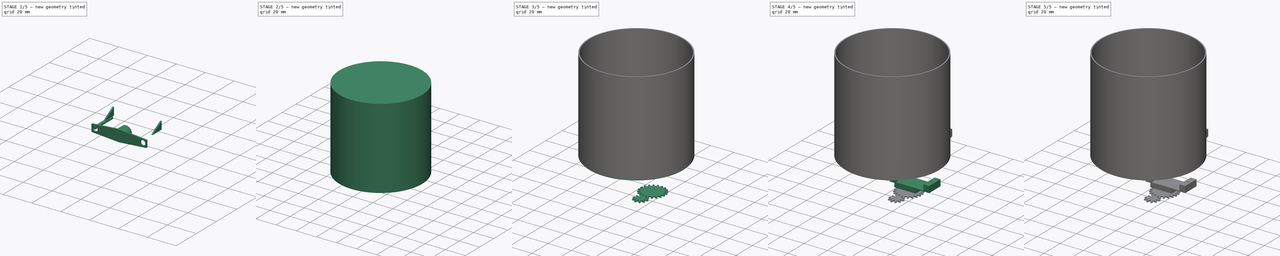
[diagram: build sequence overview — one tinted view per stage of 5, left to right]
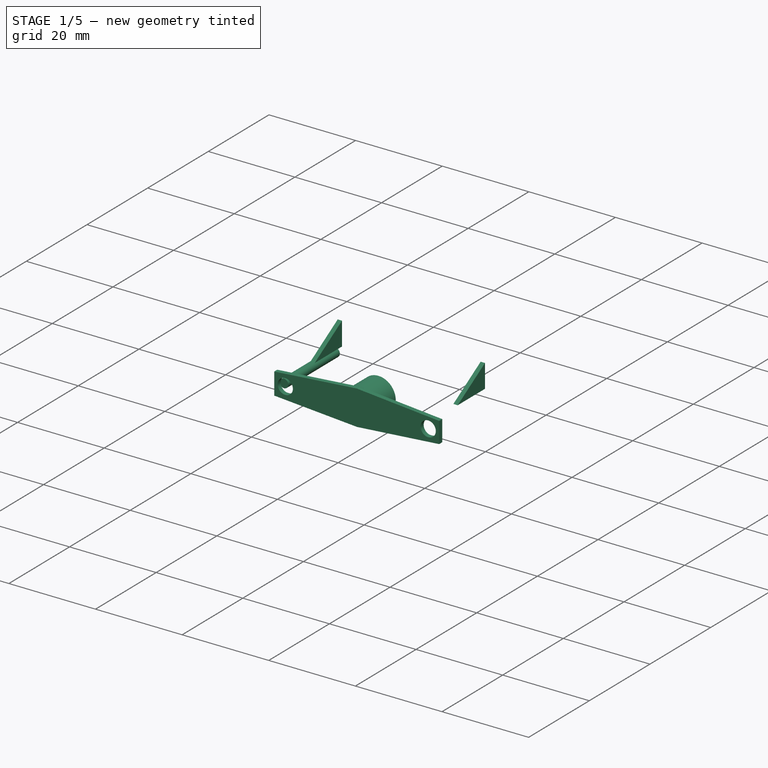
[diagram: stage 1 of 5 — iso view after this stage's code; geometry added in this stage tinted green]
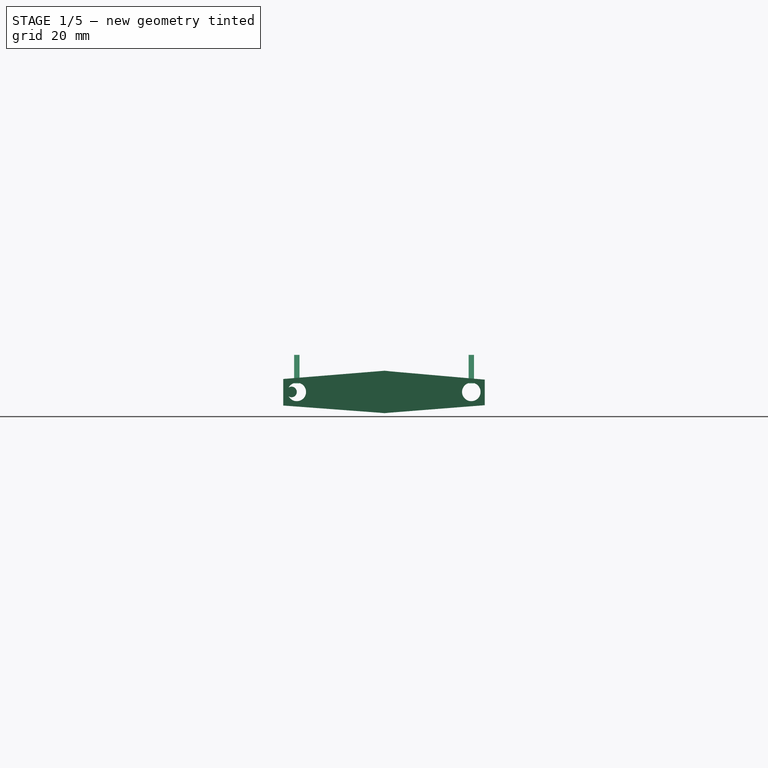
[diagram: stage 1 of 5 — front view after this stage's code; geometry added in this stage tinted green]
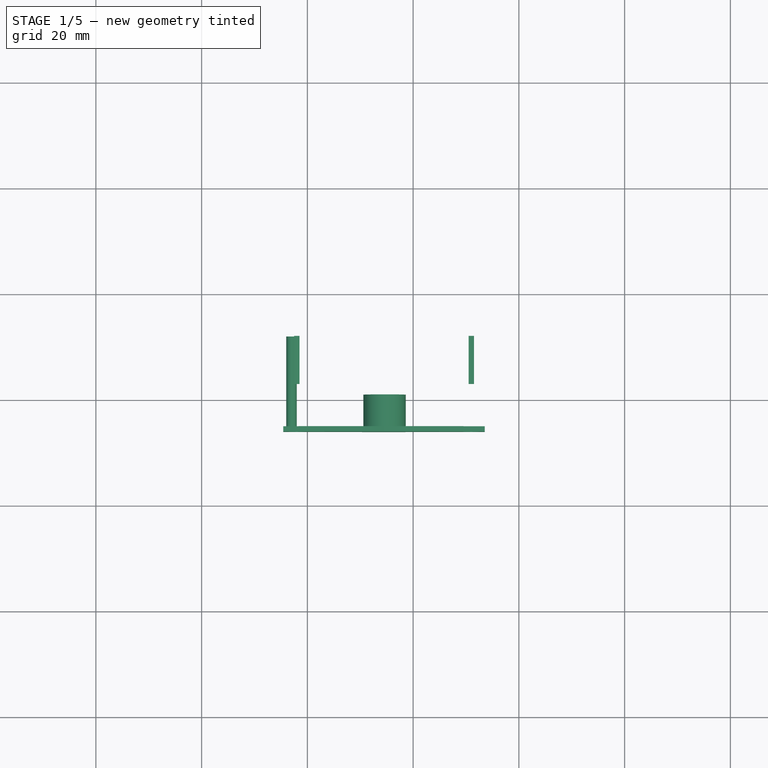
[diagram: stage 1 of 5 — top view after this stage's code; geometry added in this stage tinted green]
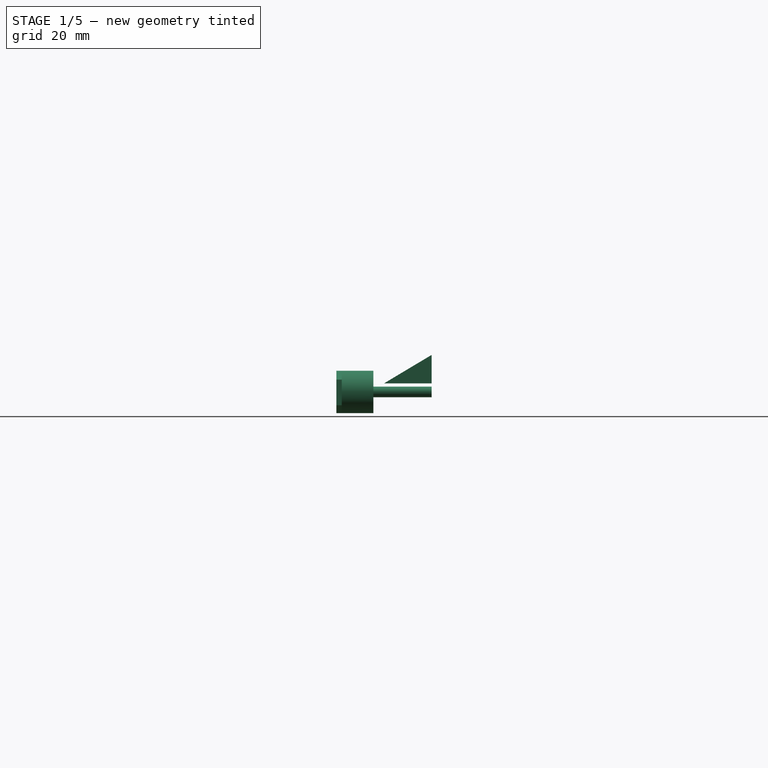
[diagram: stage 1 of 5 — right view after this stage's code; geometry added in this stage tinted green]
FCSTD DOCUMENT  (FreeCAD 0.14R3702 (Git))
Label: base-top-00
License: CC-BY 3.0
LicenseURL: http://creativecommons.org/licenses/by/3.0/
objects: Part::Cylinder×24, PartDesign::Pad×9, Sketcher::SketchObject×8, Part::Cut×8, Part::MultiFuse×4, Part::FeaturePython×3, Part::Feature×2, App::DocumentObjectGroup×2, Part::Fillet×1
note: 68 computed .brp shape members not serialized (recipe doc carries the construction recipe); baked Part::Feature solids carry a one-line shape summary decoded from their .brp

FEATURE [Part::Cylinder] Cylinder009
  Angle = 360
  Height = 6
  Placement = pos=(-5.4,-19,0) rot=(1,0,0;1.5708rad)
  Radius = 4
FEATURE [Part::Cylinder] Cylinder021
  Angle = 360
  Height = 17
  Placement = pos=(-23,-8,0) rot=(1,0,0;1.5708rad)
  Radius = 1
FEATURE [Sketcher::SketchObject] Sketch008
  Placement = pos=(0,-25,0) rot=(-1,0,0;4.71239rad)
  sketch-geometry (6):
    g0: LineSegment StartX=-24.5527 StartY=2.44915 StartZ=0 EndX=-5.51427 EndY=4 EndZ=0
    g1: LineSegment StartX=-5.51427 StartY=4 StartZ=0 EndX=13.5315 EndY=2.32669 EndZ=0
    g2: LineSegment StartX=13.5315 StartY=2.32669 StartZ=0 EndX=13.5315 EndY=-2.51037 EndZ=0
    g3: LineSegment StartX=13.5315 StartY=-2.51037 StartZ=0 EndX=-5.41401 EndY=-4 EndZ=0
    g4: LineSegment StartX=-5.41401 StartY=-4 StartZ=0 EndX=-24.5527 EndY=-2.5716 EndZ=0
    g5: LineSegment StartX=-24.5527 StartY=-2.5716 StartZ=0 EndX=-24.5527 EndY=2.44915 EndZ=0
  constraints (8):
    c: Coincident(g0,g1)
    c: Coincident(g1,g2)
    c: Coincident(g2,g3)
    c: Coincident(g3,g4)
    c: Coincident(g4,g5)
    c: Coincident(g5,g0)
    c: Vertical(g5)
    c: Vertical(g2)
FEATURE [PartDesign::Pad] Pad009
  Length = 1
  Length2 = 100
  Placement = pos=(0,-25,0) rot=(-1,0,0;4.71239rad)
  Sketch = -> Sketch008
  Type = 0
FEATURE [Part::Cylinder] Cylinder022
  Angle = 360
  Height = 17
  Placement = pos=(11,-12,0) rot=(1,0,0;1.5708rad)
  Radius = 1.75
FEATURE [Part::Cylinder] Cylinder023
  Angle = 360
  Height = 17
  Placement = pos=(-22,-12,0) rot=(1,0,0;1.5708rad)
  Radius = 1.75
FEATURE [Part::MultiFuse] Fusion002
  Shapes = -> [Cylinder022,Cylinder023]
FEATURE [Part::Cut] Cut007
  Base = -> Pad009
  Tool = -> Fusion002
FEATURE [Part::MultiFuse] Fusion003
  Shapes = -> [Cylinder009,Cut007]
FEATURE [Sketcher::SketchObject] Sketch009
  Placement = pos=(11,0,0) rot=(0.57735,0.57735,0.57735;2.0944rad)
  sketch-geometry (3):
    g0: LineSegment StartX=-8 StartY=7 StartZ=0 EndX=-17 EndY=1.61413 EndZ=0
    g1: LineSegment StartX=-17 StartY=1.61413 StartZ=0 EndX=-8 EndY=1.61413 EndZ=0
    g2: LineSegment StartX=-8 StartY=1.61413 StartZ=0 EndX=-8 EndY=7 EndZ=0
  constraints (5):
    c: Coincident(g0,g1)
    c: Horizontal(g1)
    c: Coincident(g1,g2)
    c: Coincident(g2,g0)
    c: Vertical(g2)
FEATURE [PartDesign::Pad] Pad010
  Length = 1
  Length2 = 100
  Midplane = true
  Placement = pos=(11,0,0) rot=(0.57735,0.57735,0.57735;2.0944rad)
  Sketch = -> Sketch009
  Type = 0
FEATURE [Sketcher::SketchObject] Sketch010
  Placement = pos=(-22,0,0) rot=(0.57735,0.57735,0.57735;2.0944rad)
  sketch-geometry (3):
    g0: LineSegment StartX=-8 StartY=7 StartZ=0 EndX=-17 EndY=1.61413 EndZ=0
    g1: LineSegment StartX=-17 StartY=1.61413 StartZ=0 EndX=-8 EndY=1.61413 EndZ=0
    g2: LineSegment StartX=-8 StartY=1.61413 StartZ=0 EndX=-8 EndY=7 EndZ=0
  constraints (5):
    c: Coincident(g0,g1)
    c: Horizontal(g1)
    c: Coincident(g1,g2)
    c: Coincident(g2,g0)
    c: Vertical(g2)
FEATURE [PartDesign::Pad] Pad011
  Length = 1
  Length2 = 100
  Midplane = true
  Placement = pos=(-22,0,0) rot=(0.57735,0.57735,0.57735;2.0944rad)
  Sketch = -> Sketch010
  Type = 0
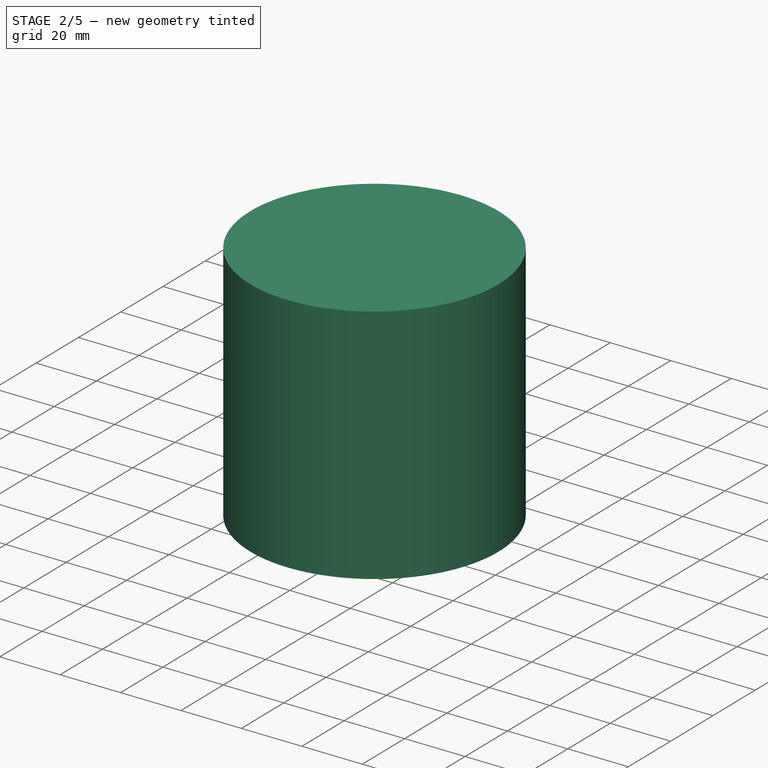
[diagram: stage 2 of 5 — iso view after this stage's code; geometry added in this stage tinted green]
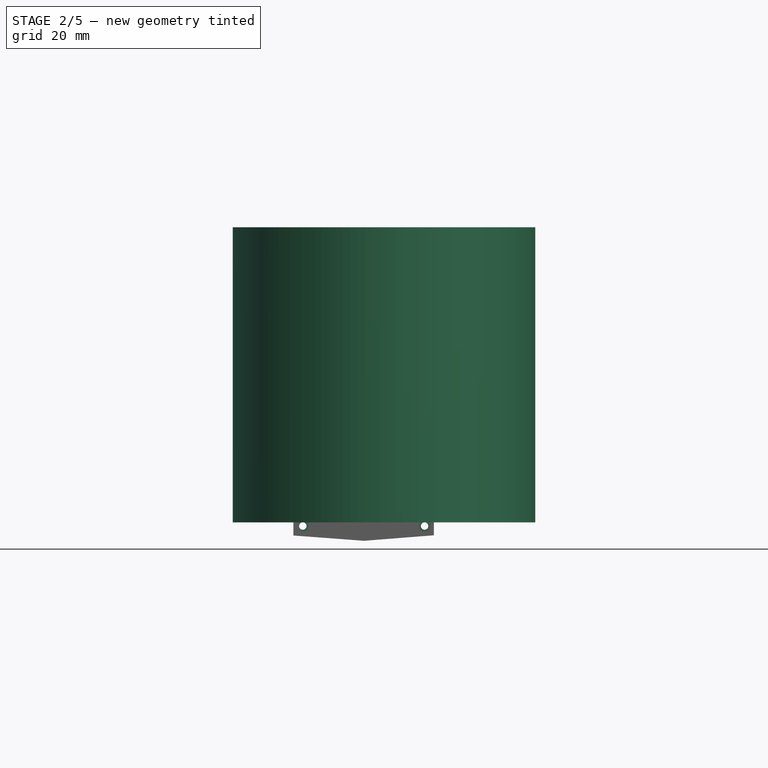
[diagram: stage 2 of 5 — front view after this stage's code; geometry added in this stage tinted green]
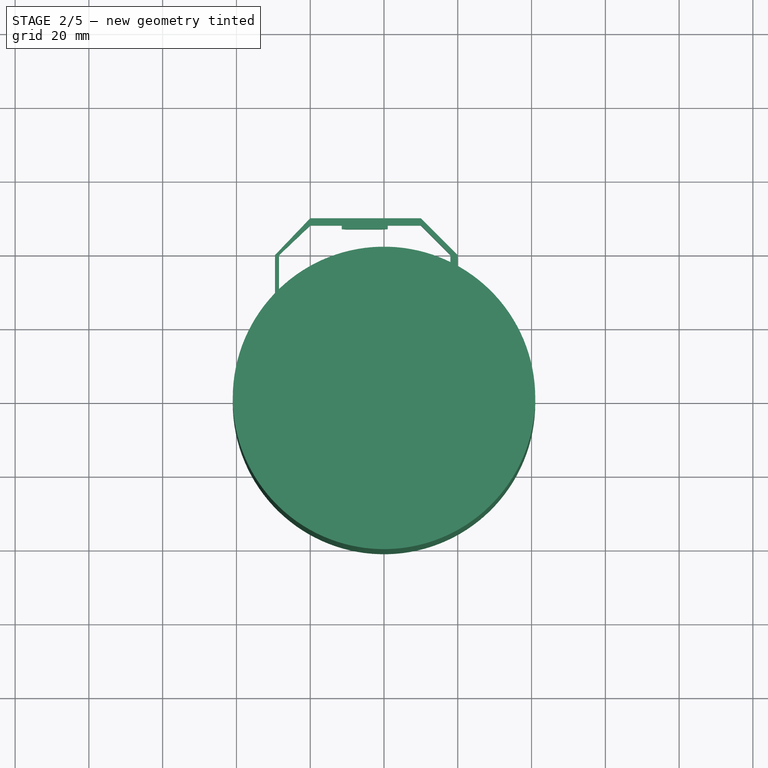
[diagram: stage 2 of 5 — top view after this stage's code; geometry added in this stage tinted green]
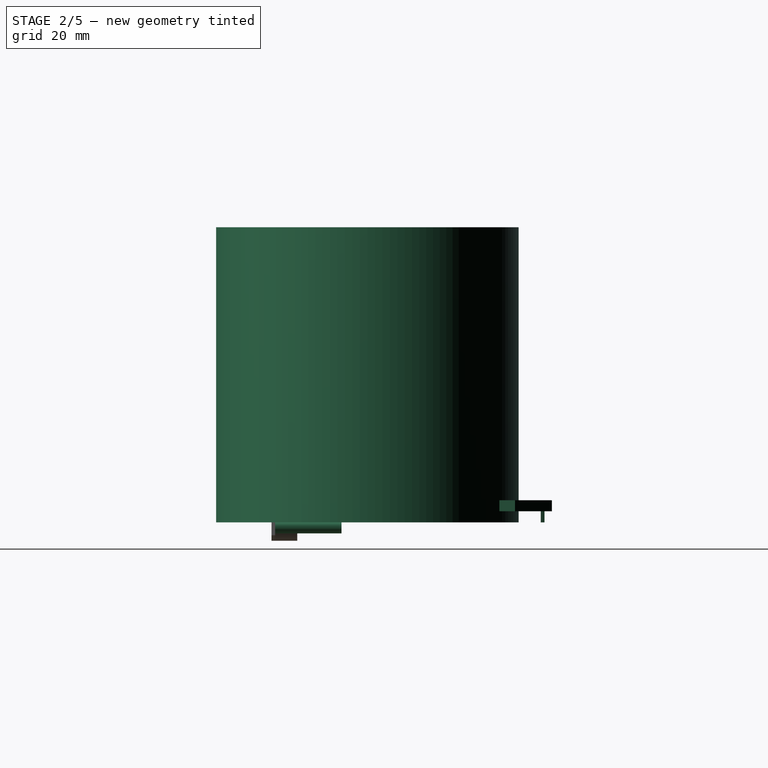
[diagram: stage 2 of 5 — right view after this stage's code; geometry added in this stage tinted green]
FEATURE [Part::Cylinder] Cylinder016
  Angle = 360
  Height = 80
  Placement = pos=(0,0,1) rot=(0,0,1;0rad)
  Radius = 40
FEATURE [Part::Cylinder] Cylinder017
  Angle = 360
  Height = 80
  Placement = pos=(0,0,1) rot=(0,0,1;0rad)
  Radius = 41
FEATURE [App::DocumentObjectGroup] Group001  label="bottom"
  Group = -> [Cylinder010,Cylinder011,Gear001,Gear002,Cylinder012,Cylinder013,Cylinder014,Fillet,Cut004]
FEATURE [Sketcher::SketchObject] Sketch006
  Placement = pos=(0,48,0) rot=(-1,0,0;4.71239rad)
  sketch-geometry (3):
    g0: LineSegment StartX=1 StartY=7 StartZ=0 EndX=-12 EndY=7 EndZ=0
    g1: LineSegment StartX=-12 StartY=7 StartZ=0 EndX=-10 EndY=1 EndZ=0
    g2: LineSegment StartX=-10 StartY=1 StartZ=0 EndX=-1 EndY=1 EndZ=0
  constraints (10):
    c: Horizontal(g0)
    c: Coincident(g0,g1)
    c: Horizontal(g2)
    c: DistanceX(g-1,g0) = 1
    c: DistanceY(g-1,g0) = 7
    c: DistanceY(g-1,g2) = 1
    c: DistanceX(g1,g2) = 9
    c: DistanceX(g0,g0) = 13
    c: DistanceX(g2,g0) = 2
    c: Coincident(g1,g2)
FEATURE [PartDesign::Pad] Pad007
  Length = 1
  Length2 = 100
  Placement = pos=(0,48,0) rot=(-1,0,0;4.71239rad)
  Sketch = -> Sketch006
  Type = 0
FEATURE [App::DocumentObjectGroup] Group  label="top"
  Group = -> [Part__Feature,Cut,Pad001,Cylinder004,Part__Feature001,Cut001,Cut002,Cut003,Pad004,Pad007]
FEATURE [Sketcher::SketchObject] Sketch007
  Placement = pos=(0,0,4) rot=(0,0,1;0rad)
  sketch-geometry (16):
    g0: LineSegment StartX=-20.1116 StartY=-8 StartZ=0 EndX=-29.5609 EndY=-8 EndZ=0
    g1: LineSegment StartX=-29.5609 StartY=-8 StartZ=0 EndX=-29.5609 EndY=40 EndZ=0
    g2: LineSegment StartX=-29.5609 StartY=40 StartZ=0 EndX=-20 EndY=50 EndZ=0
    g3: LineSegment StartX=-20 StartY=50 StartZ=0 EndX=10 EndY=50 EndZ=0
    g4: LineSegment StartX=10 StartY=50 StartZ=0 EndX=20 EndY=40 EndZ=0
    g5: LineSegment StartX=20 StartY=40 StartZ=0 EndX=20 EndY=-8 EndZ=0
    g6: LineSegment StartX=20 StartY=-8 StartZ=0 EndX=9.88843 EndY=-8 EndZ=0
    g7: LineSegment StartX=9.88843 StartY=-8 StartZ=0 EndX=-20.1116 EndY=-8 EndZ=0
    g8: LineSegment StartX=-28.4453 StartY=-6 StartZ=0 EndX=-28.4453 EndY=40 EndZ=0
    g9: LineSegment StartX=-28.4453 StartY=40 StartZ=0 EndX=-20 EndY=48 EndZ=0
    g10: LineSegment StartX=-20 StartY=48 StartZ=0 EndX=10 EndY=48 EndZ=0
    g11: LineSegment StartX=10 StartY=48 StartZ=0 EndX=18 EndY=40 EndZ=0
    g12: LineSegment StartX=18 StartY=40 StartZ=0 EndX=18 EndY=-6 EndZ=0
    g13: LineSegment StartX=18 StartY=-6 StartZ=0 EndX=10 EndY=-6 EndZ=0
    g14: LineSegment StartX=10 StartY=-6 StartZ=0 EndX=-22 EndY=-6 EndZ=0
    g15: LineSegment StartX=-22 StartY=-6 StartZ=0 EndX=-28.4453 EndY=-6 EndZ=0
  constraints (24):
    c: Coincident(g0,g1)
    c: Vertical(g1)
    c: Coincident(g1,g2)
    c: Coincident(g2,g3)
    c: Horizontal(g3)
    c: Coincident(g3,g4)
    c: Coincident(g4,g5)
    c: Vertical(g5)
    c: Coincident(g5,g6)
    c: Coincident(g6,g7)
    c: Coincident(g7,g0)
    c: Horizontal(g7)
    c: Vertical(g8)
    c: Coincident(g8,g9)
    c: Coincident(g9,g10)
    c: Horizontal(g10)
    c: Coincident(g10,g11)
    c: Coincident(g11,g12)
    c: Vertical(g12)
    c: Coincident(g12,g13)
    c: Coincident(g13,g14)
    c: Horizontal(g14)
    c: Coincident(g14,g15)
    c: Coincident(g15,g8)
FEATURE [PartDesign::Pad] Pad008
  Length = 3
  Length2 = 100
  Placement = pos=(0,0,4) rot=(0,0,1;0rad)
  Sketch = -> Sketch007
  Type = 0
FEATURE [Part::Cylinder] Cylinder018
  Angle = 360
  Height = 18
  Placement = pos=(12,-7,0) rot=(1,0,0;1.5708rad)
  Radius = 2
FEATURE [Part::Cylinder] Cylinder019
  Angle = 360
  Height = 17
  Placement = pos=(-23,-8,0) rot=(1,0,0;1.5708rad)
  Radius = 2
FEATURE [Part::Cylinder] Cylinder020
  Angle = 360
  Height = 18
  Placement = pos=(12,-7,0) rot=(1,0,0;1.5708rad)
  Radius = 1
FEATURE [Part::Cut] Cut005
  Base = -> Cylinder018
  Placement = pos=(-1,0,0) rot=(0,0,1;0rad)
  Tool = -> Cylinder020
FEATURE [Part::Cut] Cut006
  Base = -> Cylinder019
  Placement = pos=(1,0,0) rot=(0,0,1;0rad)
  Tool = -> Cylinder021
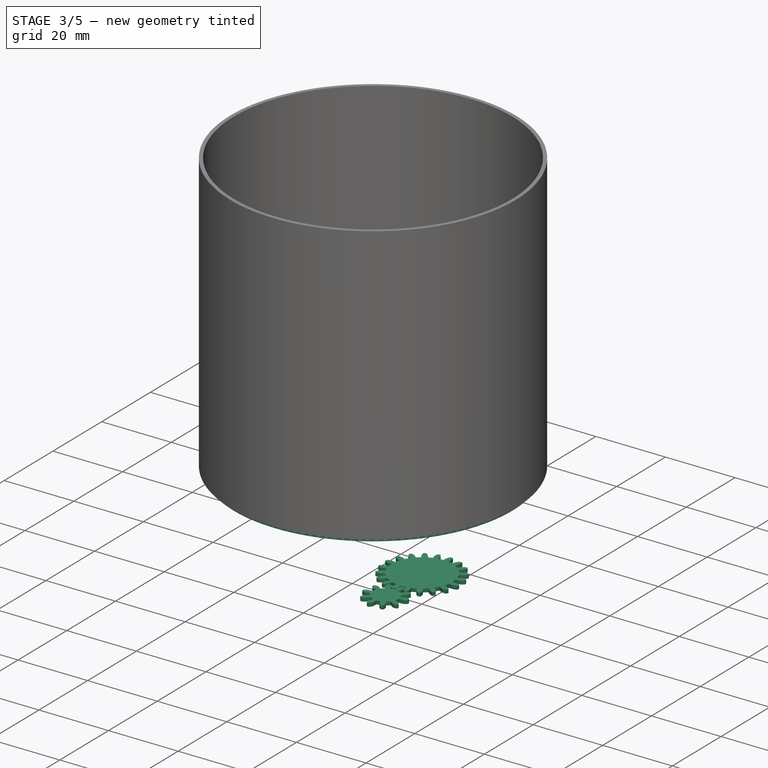
[diagram: stage 3 of 5 — iso view after this stage's code; geometry added in this stage tinted green]
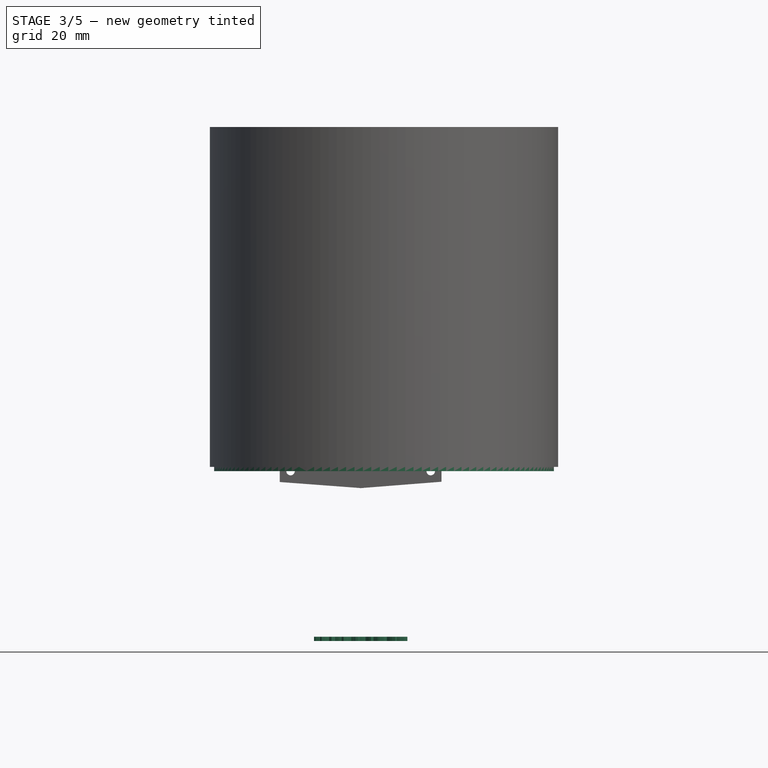
[diagram: stage 3 of 5 — front view after this stage's code; geometry added in this stage tinted green]
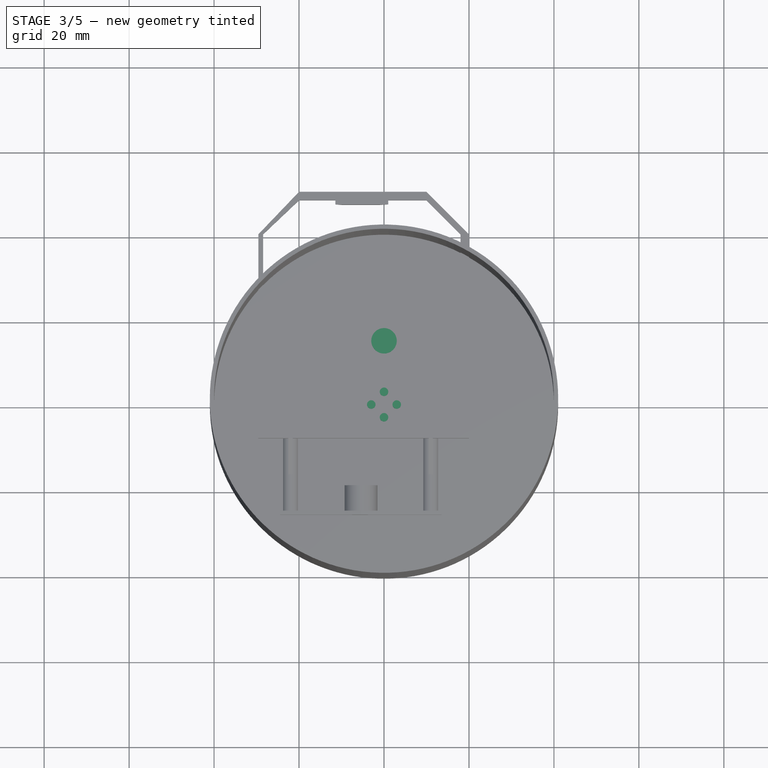
[diagram: stage 3 of 5 — top view after this stage's code; geometry added in this stage tinted green]
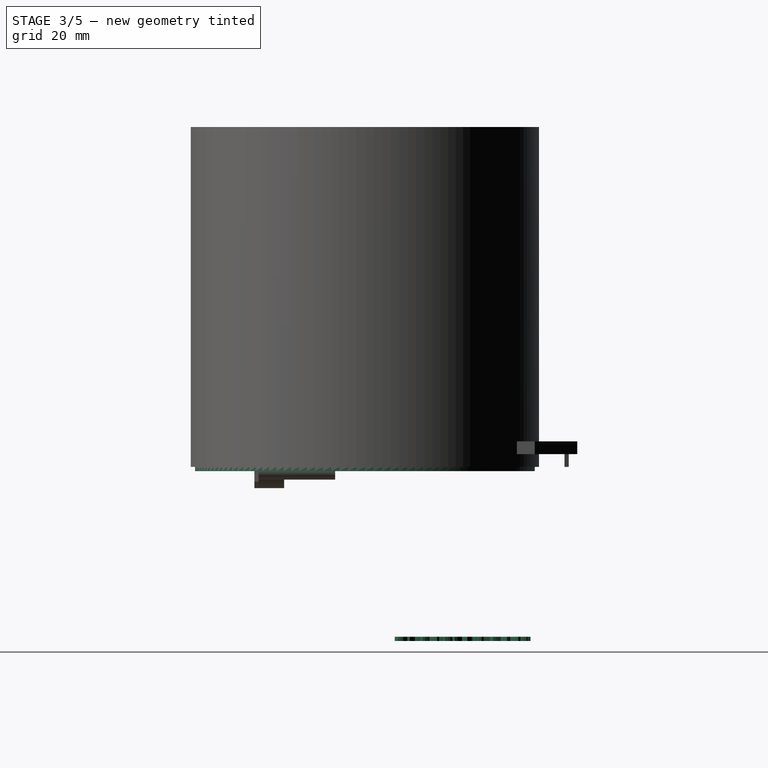
[diagram: stage 3 of 5 — right view after this stage's code; geometry added in this stage tinted green]
FEATURE [Part::Cylinder] Cylinder010
  Angle = 360
  Height = 1
  Radius = 40
FEATURE [Part::Cylinder] Cylinder011
  Angle = 360
  Height = 1
  Placement = pos=(0,3,1) rot=(0,0,1;0rad)
  Radius = 1
FEATURE [Part::FeaturePython] Gear001  # WARN: FeaturePython — macro-defined, semantics opaque (R4)
  CenterRadius = 0
  GearHeight = 1
  LevelOfDetail = 3
  Module = 1
  NumberTeeth = 10
  Placement = pos=(-5.5,13,-40) rot=(0,0,1;0rad)
  PressureAngle = 15
  Verbose = true
FEATURE [Part::FeaturePython] Gear002  # WARN: FeaturePython — macro-defined, semantics opaque (R4)
  CenterRadius = 0
  GearHeight = 1
  LevelOfDetail = 3
  Module = 1
  NumberTeeth = 20
  Placement = pos=(-5.5,28,-40) rot=(0,0,-1;0.15708rad)
  PressureAngle = 15
  Verbose = true
FEATURE [Part::Cylinder] Cylinder012
  Angle = 360
  Height = 1
  Placement = pos=(0,-3,1) rot=(0,0,1;0rad)
  Radius = 1
FEATURE [Part::Cylinder] Cylinder013
  Angle = 360
  Height = 1
  Placement = pos=(3,0,1) rot=(0,0,1;0rad)
  Radius = 1
FEATURE [Part::Cylinder] Cylinder014
  Angle = 360
  Height = 1
  Placement = pos=(-3,0,1) rot=(0,0,1;0rad)
  Radius = 1
FEATURE [Part::Cylinder] Cylinder015
  Angle = 360
  Height = 1
  Placement = pos=(0,15,1) rot=(0,0,1;0rad)
  Radius = 3
FEATURE [Part::Fillet] Fillet
  Base = -> Cylinder015
  Edges = 1 edges r=0.7: [Edge3]
FEATURE [Part::Cut] Cut004
  Base = -> Cylinder017
  Tool = -> Cylinder016
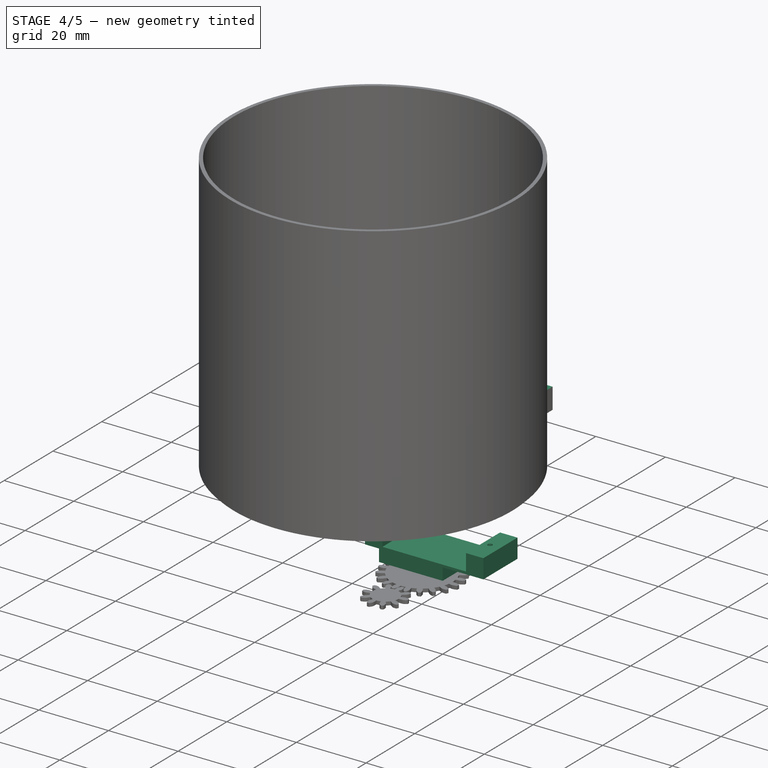
[diagram: stage 4 of 5 — iso view after this stage's code; geometry added in this stage tinted green]
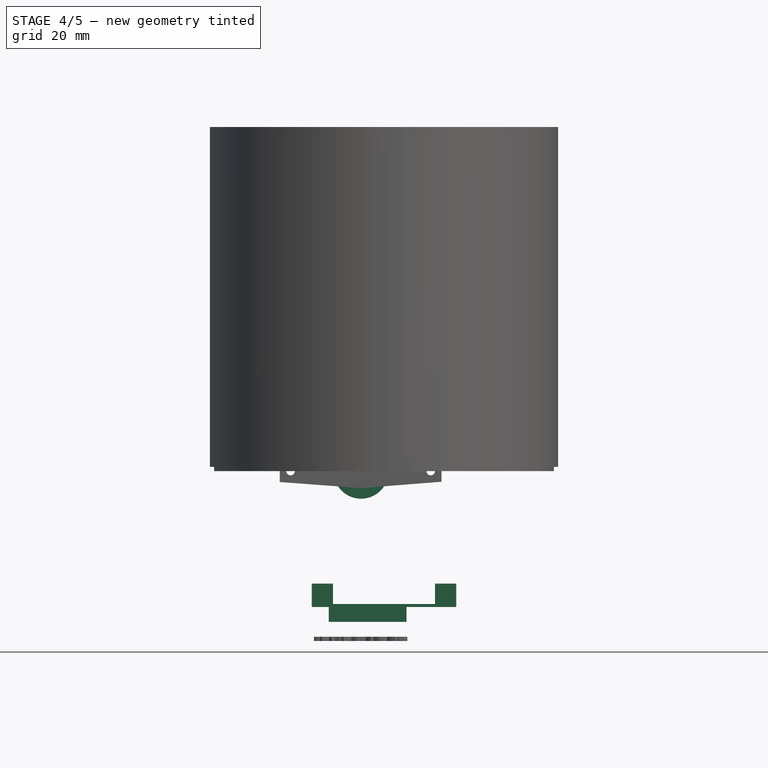
[diagram: stage 4 of 5 — front view after this stage's code; geometry added in this stage tinted green]
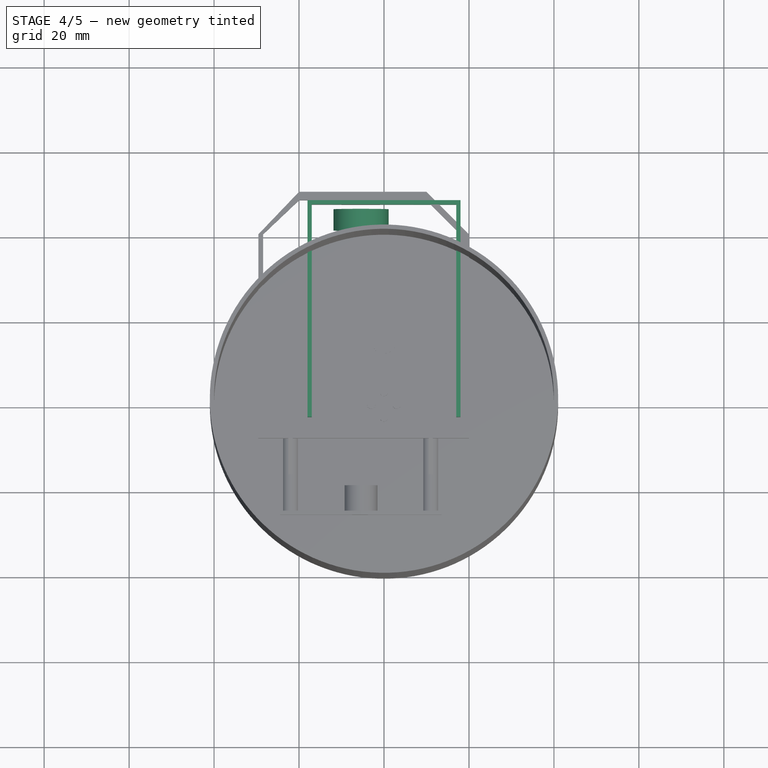
[diagram: stage 4 of 5 — top view after this stage's code; geometry added in this stage tinted green]
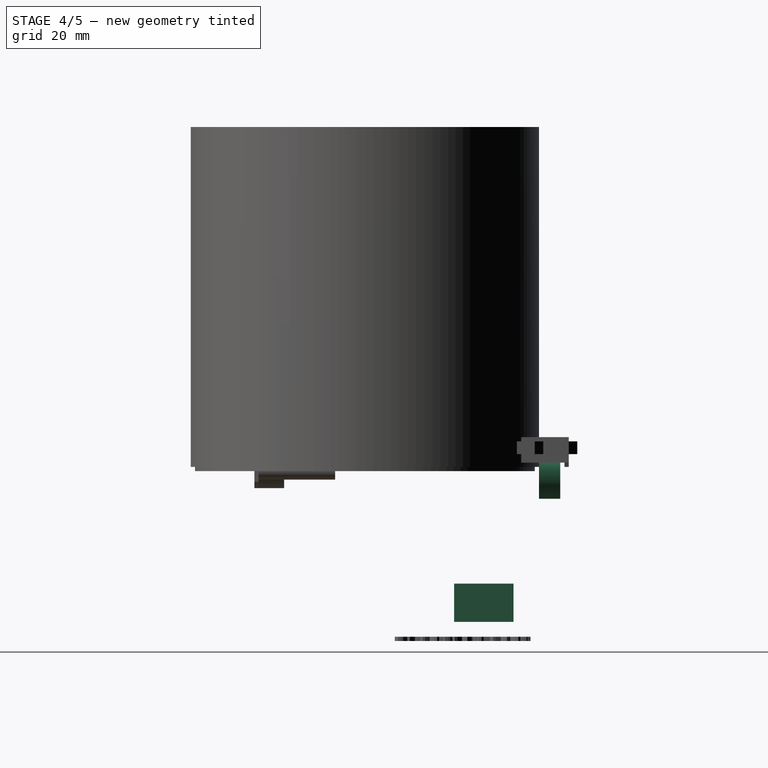
[diagram: stage 4 of 5 — right view after this stage's code; geometry added in this stage tinted green]
FEATURE [Part::Feature] Part__Feature  label="hxt900-horizontal"
  Placement = pos=(0,0,0) rot=(0,0.707107,-0.707107;3.14159rad)
  shape: bbox 32.69 x 29.96 x 12 mm, 44 faces (baked)
FEATURE [Part::Cylinder] Cylinder
  Angle = 360
  Height = 4
  Placement = pos=(-5.43,-7,0) rot=(1,0,0;1.5708rad)
  Radius = 6.5
FEATURE [Part::Cylinder] Cylinder001
  Angle = 360
  Height = 4
  Placement = pos=(0.57,-7,0) rot=(1,0,0;1.5708rad)
  Radius = 3.5
FEATURE [Part::Cylinder] Cylinder002
  Angle = 360
  Height = 6
  Placement = pos=(-14,-1,0) rot=(1,0,0;1.5708rad)
  Radius = 0.65
FEATURE [Part::Cylinder] Cylinder003
  Angle = 360
  Height = 6
  Placement = pos=(14,-1,0) rot=(1,0,0;1.5708rad)
  Radius = 0.65
FEATURE [Part::Cylinder] Cylinder008
  Angle = 360
  Height = 5
  Placement = pos=(-5.4,46,0) rot=(1,0,0;1.5708rad)
  Radius = 6.5
FEATURE [Part::MultiFuse] Fusion001
  Shapes = -> [Cylinder002,Cylinder001,Cylinder003,Cylinder]
FEATURE [PartDesign::Pad] Pad002
  Length = 14
  Length2 = 100
  Midplane = true
  Sketch = -> Sketch
  Type = 0
FEATURE [Part::Cut] Cut003
  Base = -> Pad002
  Placement = pos=(0,28,-25) rot=(1,0,0;1.5708rad)
  Tool = -> Fusion001
FEATURE [Sketcher::SketchObject] Sketch003
  Placement = pos=(0,0,2) rot=(0,0,1;0rad)
  sketch-geometry (8):
    g0: LineSegment StartX=-17 StartY=-3 StartZ=0 EndX=-17 EndY=47 EndZ=0
    g1: LineSegment StartX=-17 StartY=47 StartZ=0 EndX=17 EndY=47 EndZ=0
    g2: LineSegment StartX=17 StartY=47 StartZ=0 EndX=17 EndY=-3 EndZ=0
    g3: LineSegment StartX=17 StartY=-3 StartZ=0 EndX=18 EndY=-3 EndZ=0
    g4: LineSegment StartX=18 StartY=-3 StartZ=0 EndX=18 EndY=48 EndZ=0
    g5: LineSegment StartX=18 StartY=48 StartZ=0 EndX=-18 EndY=48 EndZ=0
    g6: LineSegment StartX=-18 StartY=48 StartZ=0 EndX=-18 EndY=-3 EndZ=0
    g7: LineSegment StartX=-18 StartY=-3 StartZ=0 EndX=-17 EndY=-3 EndZ=0
  constraints (24):
    c: Vertical(g0)
    c: Coincident(g0,g1)
    c: Horizontal(g1)
    c: Coincident(g1,g2)
    c: Coincident(g2,g3)
    c: Horizontal(g3)
    c: Coincident(g3,g4)
    c: Coincident(g4,g5)
    c: Horizontal(g5)
    c: Coincident(g5,g6)
    c: Vertical(g6)
    c: Coincident(g6,g7)
    c: Coincident(g7,g0)
    c: Vertical(g2)
    c: Vertical(g4)
    c: Horizontal(g7)
    c: DistanceX(g6,g0) = 1
    c: DistanceX(g3,g2) = -1
    c: DistanceX(g-1,g2) = 17
    c: DistanceX(g-1,g0) = -17
    c: DistanceY(g1,g4) = 1
    c: DistanceY(g-1,g4) = 48
    c: DistanceY(g-1,g3) = -3
    c: DistanceY(g-1,g6) = -3
FEATURE [PartDesign::Pad] Pad004
  Length = 6
  Length2 = 100
  Placement = pos=(0,0,2) rot=(0,0,1;0rad)
  Sketch = -> Sketch003
  Type = 0
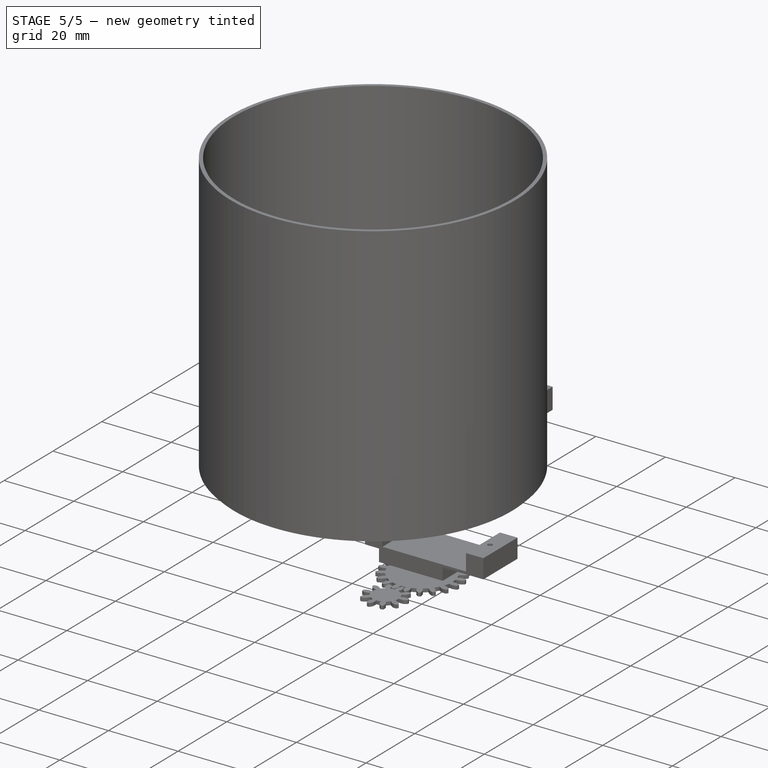
[diagram: stage 5 of 5 — iso view after this stage's code; geometry added in this stage tinted green]
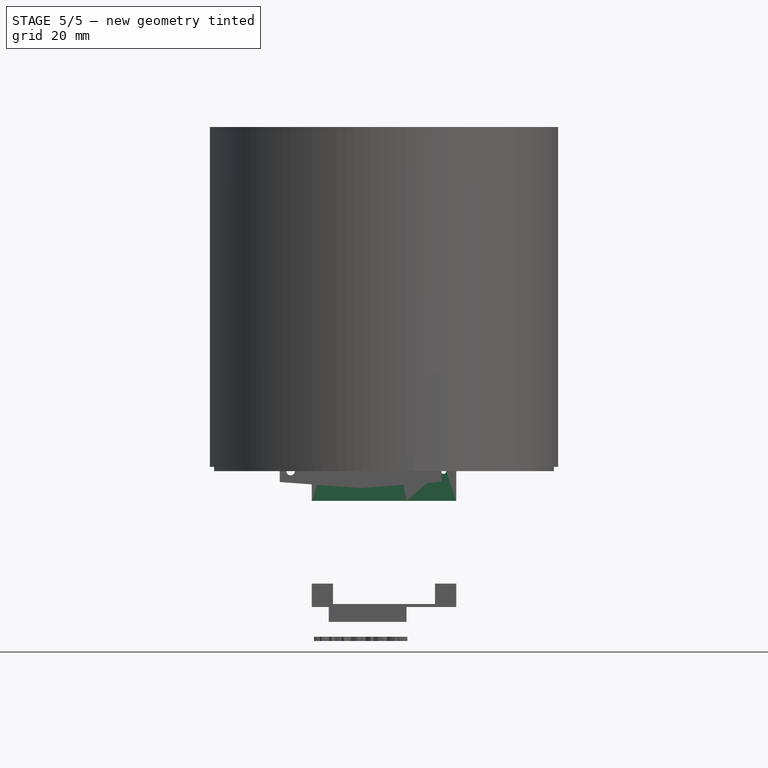
[diagram: stage 5 of 5 — front view after this stage's code; geometry added in this stage tinted green]
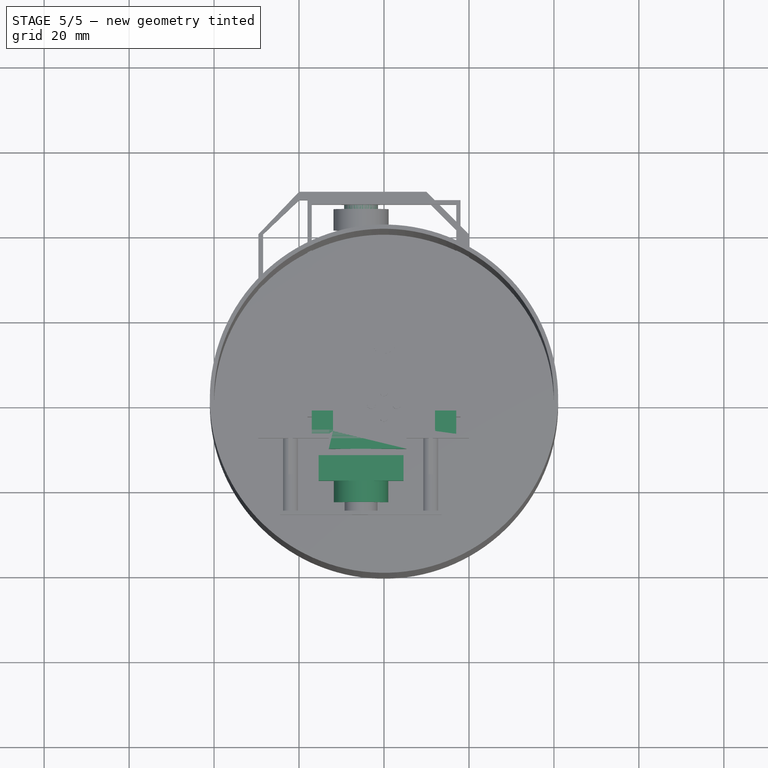
[diagram: stage 5 of 5 — top view after this stage's code; geometry added in this stage tinted green]
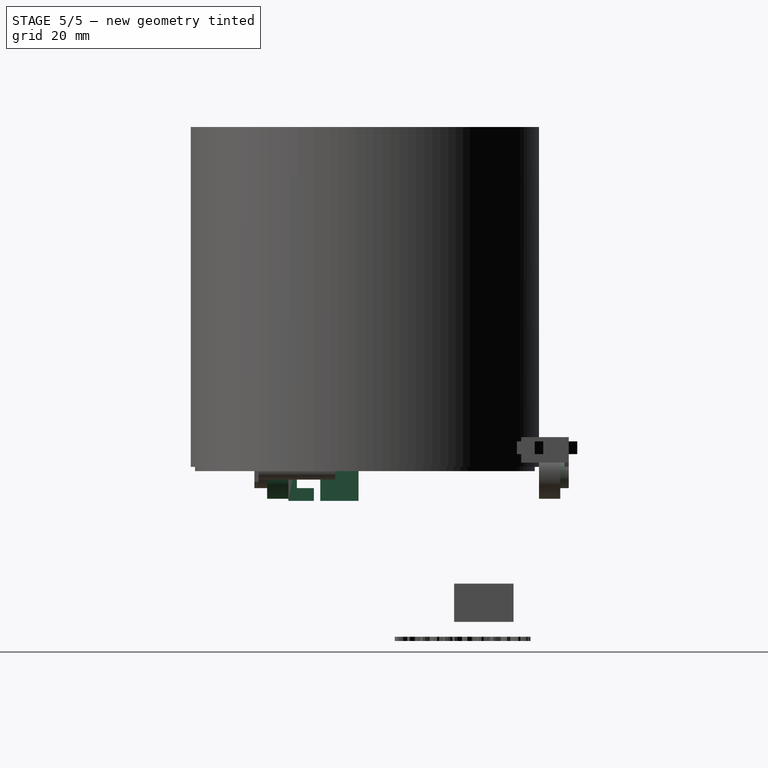
[diagram: stage 5 of 5 — right view after this stage's code; geometry added in this stage tinted green]
FEATURE [Sketcher::SketchObject] Sketch
  sketch-geometry (12):
    g0: LineSegment StartX=-17 StartY=-1.5 StartZ=0 EndX=-12 EndY=-1.5 EndZ=0
    g1: LineSegment StartX=-12 StartY=-1.5 StartZ=0 EndX=-12 EndY=-6.3 EndZ=0
    g2: LineSegment StartX=-12 StartY=-6.3 StartZ=0 EndX=12 EndY=-6.3 EndZ=0
    g3: LineSegment StartX=12 StartY=-6.3 StartZ=0 EndX=12 EndY=-1.5 EndZ=0
    g4: LineSegment StartX=12 StartY=-1.5 StartZ=0 EndX=17 EndY=-1.5 EndZ=0
    g5: LineSegment StartX=17 StartY=-1.5 StartZ=0 EndX=17 EndY=-7 EndZ=0
    g6: LineSegment StartX=17 StartY=-7 StartZ=0 EndX=5.3 EndY=-7 EndZ=0
    g7: LineSegment StartX=5.3 StartY=-7 StartZ=0 EndX=5.3 EndY=-10.5 EndZ=0
    g8: LineSegment StartX=5.3 StartY=-10.5 StartZ=0 EndX=-13 EndY=-10.5 EndZ=0
    g9: LineSegment StartX=-13 StartY=-10.5 StartZ=0 EndX=-13 EndY=-7 EndZ=0
    g10: LineSegment StartX=-13 StartY=-7 StartZ=0 EndX=-17 EndY=-7 EndZ=0
    g11: LineSegment StartX=-17 StartY=-7 StartZ=0 EndX=-17 EndY=-1.5 EndZ=0
  constraints (36):
    c: Horizontal(g0)
    c: Coincident(g0,g1)
    c: Vertical(g1)
    c: Coincident(g1,g2)
    c: Horizontal(g2)
    c: Coincident(g2,g3)
    c: Vertical(g3)
    c: Coincident(g3,g4)
    c: Horizontal(g4)
    c: Coincident(g4,g5)
    c: Vertical(g5)
    c: Coincident(g5,g6)
    c: Horizontal(g6)
    c: Coincident(g6,g7)
    c: Vertical(g7)
    c: Coincident(g7,g8)
    c: Horizontal(g8)
    c: Coincident(g8,g9)
    c: Vertical(g9)
    c: Coincident(g9,g10)
    c: Horizontal(g10)
    c: Coincident(g10,g11)
    c: Coincident(g11,g0)
    c: Vertical(g11)
    c: DistanceX(g-1,g0) = -12
    c: DistanceX(g-1,g3) = 12
    c: DistanceX(g-1,g0) = -17
    c: DistanceX(g-1,g4) = 17
    c: DistanceX(g-1,g8) = -13
    c: DistanceX(g-1,g7) = 5.3
    c: DistanceY(g-1,g1) = -6.3
    c: DistanceY(g-1,g10) = -7
    c: DistanceY(g-1,g5) = -7
    c: DistanceY(g-1,g0) = -1.5
    c: DistanceY(g-1,g4) = -1.5
    c: DistanceY(g6,g7) = -3.5
FEATURE [PartDesign::Pad] Pad
  Length = 14
  Length2 = 100
  Midplane = true
  Sketch = -> Sketch
  Type = 0
FEATURE [Sketcher::SketchObject] Sketch001
  Placement = pos=(-5.4,0,0) rot=(0.57735,0.57735,0.57735;2.0944rad)
  sketch-geometry (8):
    g0: LineSegment StartX=-12 StartY=7 StartZ=0 EndX=-12 EndY=4 EndZ=0
    g1: LineSegment StartX=-12 StartY=4 StartZ=0 EndX=-16 EndY=4 EndZ=0
    g2: LineSegment StartX=-16 StartY=4 StartZ=0 EndX=-16 EndY=-4 EndZ=0
    g3: LineSegment StartX=-16 StartY=-4 StartZ=0 EndX=-12 EndY=-4 EndZ=0
    g4: LineSegment StartX=-12 StartY=-4 StartZ=0 EndX=-12 EndY=-7 EndZ=0
    g5: LineSegment StartX=-12 StartY=-7 StartZ=0 EndX=-18 EndY=-7 EndZ=0
    g6: LineSegment StartX=-18 StartY=-7 StartZ=0 EndX=-18 EndY=7 EndZ=0
    g7: LineSegment StartX=-18 StartY=7 StartZ=0 EndX=-12 EndY=7 EndZ=0
  constraints (25):
    c: Vertical(g0)
    c: Coincident(g0,g1)
    c: Horizontal(g1)
    c: Coincident(g1,g2)
    c: Vertical(g2)
    c: Coincident(g2,g3)
    c: Horizontal(g3)
    c: Coincident(g3,g4)
    c: Vertical(g4)
    c: Coincident(g4,g5)
    c: Horizontal(g5)
    c: Coincident(g5,g6)
    c: Vertical(g6)
    c: Coincident(g6,g7)
    c: Coincident(g7,g0)
    c: Horizontal(g7)
    c: DistanceX(g-1,g0) = -12
    c: DistanceX(g6,g0) = 6
    c: DistanceY(g1,g6) = 3
    c: DistanceY(g-1,g1) = 4
    c: Symmetric(g0,g4,g-1)
    c: Symmetric(g0,g3,g-1)
    c: Symmetric(g0,g4,g-1)
    c: Symmetric(g0,g3,g-1)
    c: DistanceX(g2,g5) = -2
FEATURE [PartDesign::Pad] Pad001
  Length = 20
  Length2 = 100
  Midplane = true
  Placement = pos=(-5.4,0,0) rot=(0.57735,0.57735,0.57735;2.0944rad)
  Sketch = -> Sketch001
  Type = 0
FEATURE [Part::Cylinder] Cylinder004
  Angle = 360
  Height = 6
  Placement = pos=(-5.4,48,0) rot=(1,0,0;1.5708rad)
  Radius = 4
FEATURE [Part::Feature] Part__Feature001  label="hxt900-vertical"
  Placement = pos=(0,28,-25) rot=(0,1,0;3.14159rad)
  shape: bbox 32.69 x 12 x 29.96 mm, 44 faces (baked)
FEATURE [Part::Cylinder] Cylinder005
  Angle = 360
  Height = 5
  Placement = pos=(-5.4,46,0) rot=(1,0,0;1.5708rad)
  Radius = 5
FEATURE [Part::Cylinder] Cylinder006
  Angle = 360
  Height = 5
  Placement = pos=(-5.4,46,0) rot=(1,0,0;1.5708rad)
  Radius = 6.5
FEATURE [Part::Cut] Cut001
  Base = -> Cylinder006
  Tool = -> Cylinder005
FEATURE [Part::Cylinder] Cylinder007
  Angle = 360
  Height = 5
  Placement = pos=(-5.4,46,0) rot=(1,0,0;1.5708rad)
  Radius = 5
FEATURE [Part::Cut] Cut002
  Base = -> Cylinder008
  Placement = pos=(0,-64,0) rot=(0,0,1;0rad)
  Tool = -> Cylinder007
FEATURE [Part::FeaturePython] Gear  # WARN: FeaturePython — macro-defined, semantics opaque (R4)
  CenterRadius = 10
  GearHeight = 10
  LevelOfDetail = 10
  Module = 10
  NumberTeeth = 20
  PressureAngle = 20
  Verbose = true
FEATURE [Part::MultiFuse] Fusion
  Shapes = -> [Cylinder002,Cylinder001,Cylinder003,Cylinder,Gear]
FEATURE [Part::Cut] Cut
  Base = -> Pad
  Tool = -> Fusion
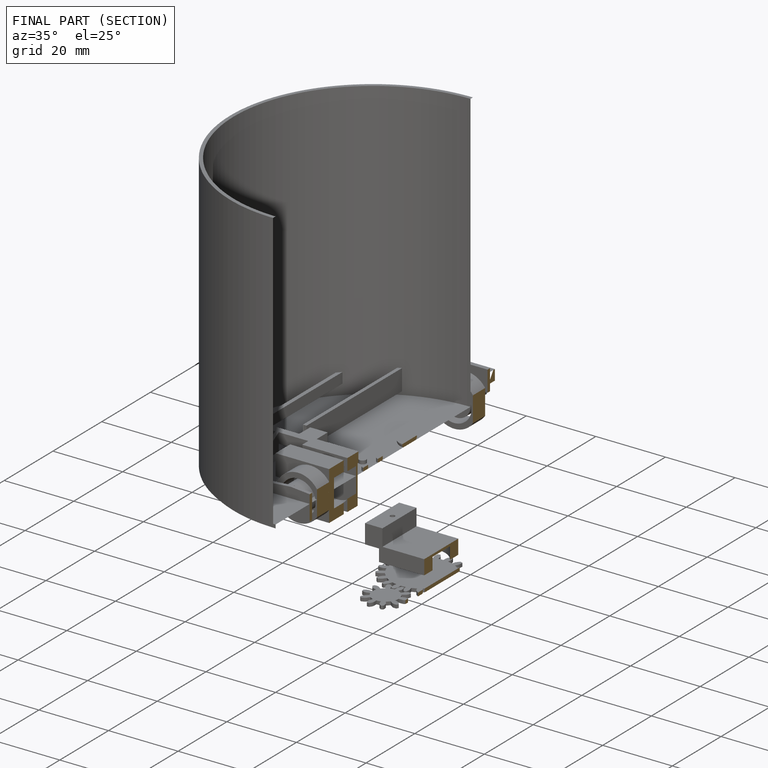
[diagram: finished part — half-section view (interior)]
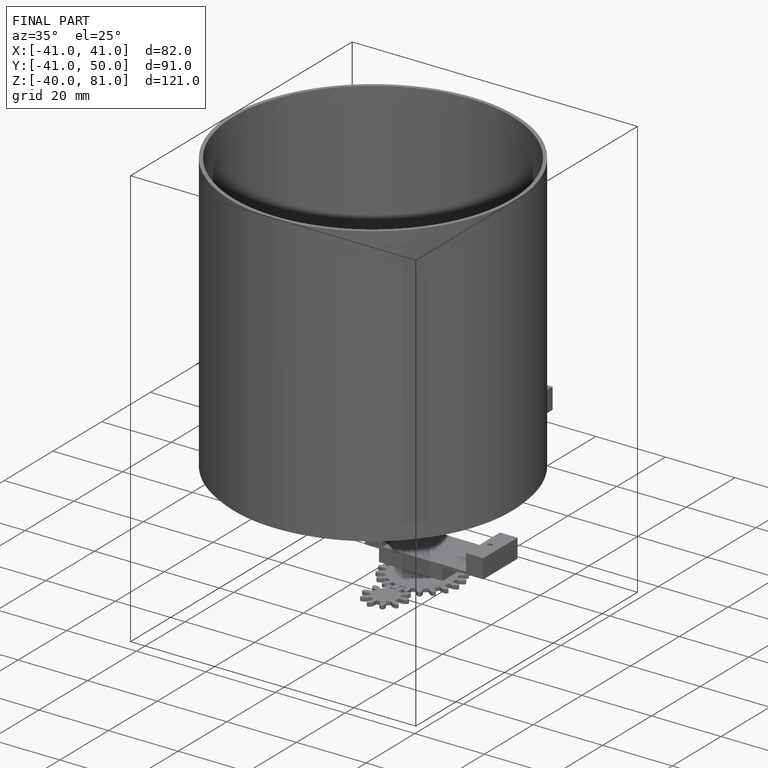
[diagram: finished part — iso view with bounding-box wireframe]
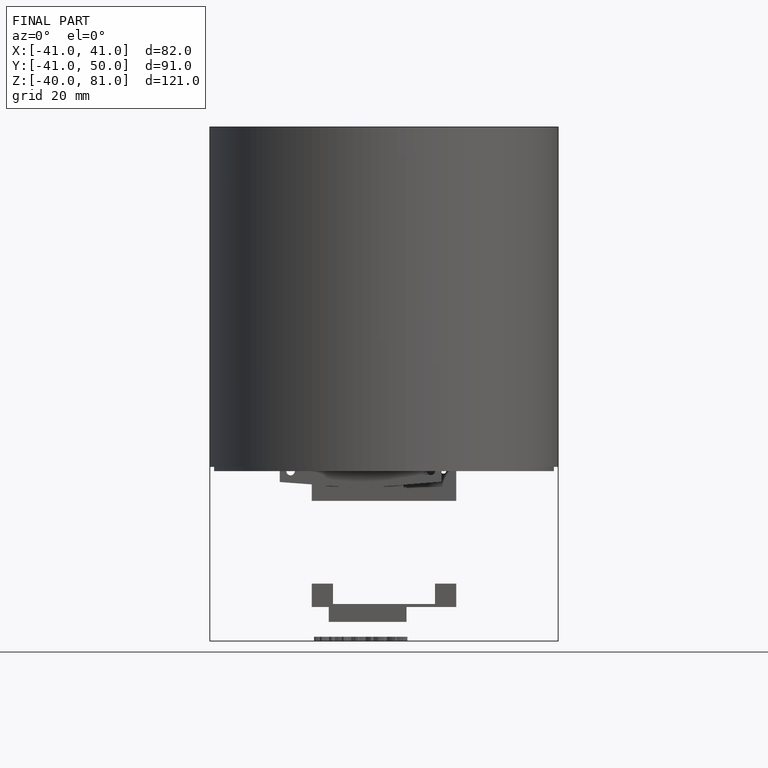
[diagram: finished part — front view with bounding-box wireframe]
